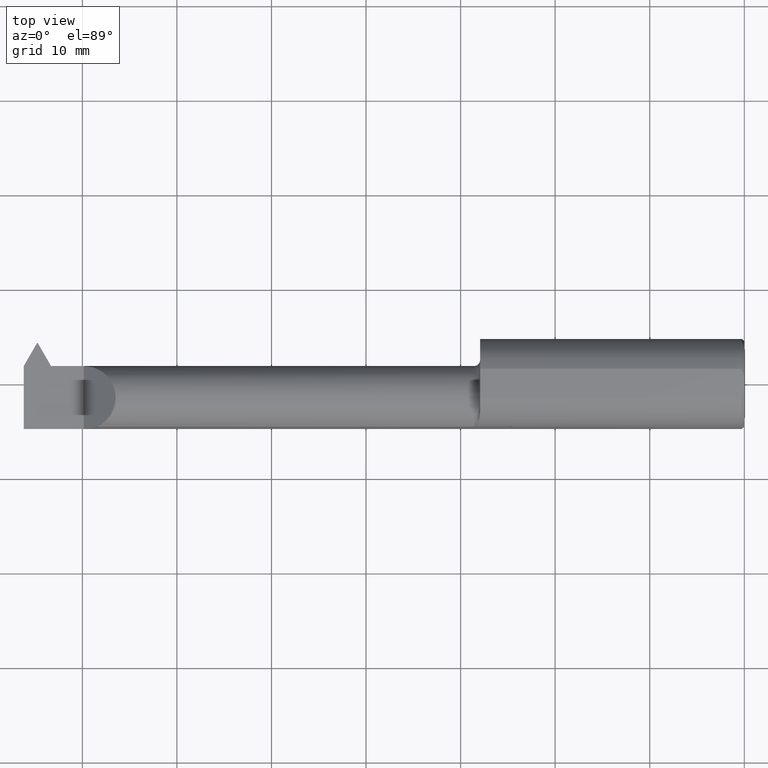
[diagram: clean part render]
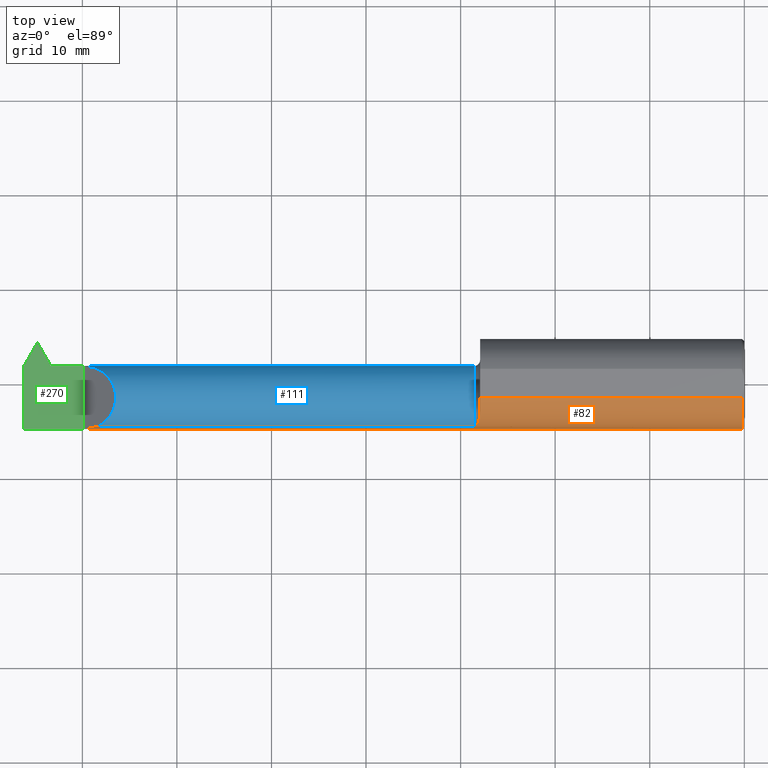
[diagram: same view with three faces highlighted in distinct colors, each labeled with its STEP entity id]
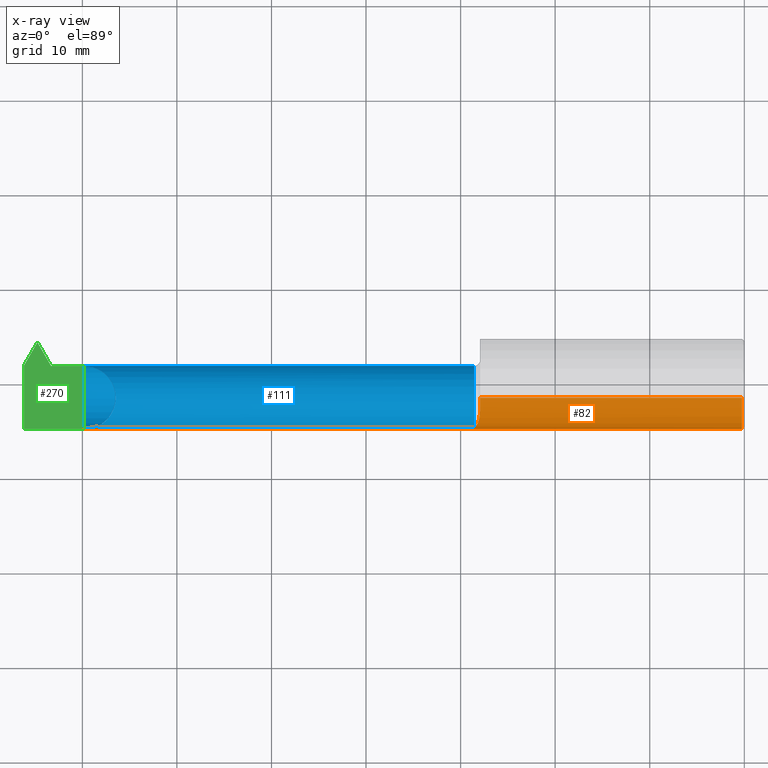
[diagram: x-ray of the same camera — body ghosted, the three highlighted faces saturated]
A machine part, top view with three faces highlighted in distinct colors.
The next image is the same camera in x-ray (body ghosted, the three faces saturated) — at least one of them is partly hidden behind the body in this view.
Their STEP definitions:

[orange] entity #82 — the highlighted cylindrical surface (partial cylindrical patch) has radius 4.7587 mm, axis along (1, 0, -0).
#9 = EDGE_CURVE ( 'NONE', #34, #840, #579, .T. ) ;
#34 = VERTEX_POINT ( 'NONE', #297 ) ;
#39 = DIRECTION ( 'NONE',  ( 1.000000000000000000, 1.224646799147352961E-16, -0.000000000000000000 ) ) ;
#51 = AXIS2_PLACEMENT_3D ( 'NONE', #289, #39, #445 ) ;
#53 = CARTESIAN_POINT ( 'NONE',  ( -0.009999999999999620304, -0.06039039658753660861, 0.1773500000000000354 ) ) ;
#55 = CARTESIAN_POINT ( 'NONE',  ( -1.117163479082055932, -0.1755340703777930333, 0.06552011612893474113 ) ) ;
#58 = CARTESIAN_POINT ( 'NONE',  ( -1.122655856876659808, -0.1781552959227975519, 0.05797775639605525638 ) ) ;
#68 = ORIENTED_EDGE ( 'NONE', *, *, #312, .T. ) ;
#75 = LINE ( 'NONE', #818, #572 ) ;
#82 = ADVANCED_FACE ( 'NONE', ( #778 ), #713, .T. ) ;
#89 = CARTESIAN_POINT ( 'NONE',  ( -1.100000000000000311, -0.1160303770345110230, 0.1470951192431506904 ) ) ;
#101 = ORIENTED_EDGE ( 'NONE', *, *, #735, .T. ) ;
#108 = ORIENTED_EDGE ( 'NONE', *, *, #539, .F. ) ;
#132 = CARTESIAN_POINT ( 'NONE',  ( -1.120156893127618458, -0.1773094052629653194, 0.06051821018283167625 ) ) ;
#136 = VECTOR ( 'NONE', #276, 39.37007874015748143 ) ;
#143 = DIRECTION ( 'NONE',  ( 0.000000000000000000, -1.000000000000000000, -5.329070518200751394E-15 ) ) ;
#146 = AXIS2_PLACEMENT_3D ( 'NONE', #148, #272, #143 ) ;
#148 = CARTESIAN_POINT ( 'NONE',  ( -1.100000000000000311, 1.714505518806293898E-16, 0.000000000000000000 ) ) ;
#180 = ORIENTED_EDGE ( 'NONE', *, *, #181, .T. ) ;
#181 = EDGE_CURVE ( 'NONE', #403, #783, #212, .T. ) ;
#186 = CARTESIAN_POINT ( 'NONE',  ( -1.118195961774019809, -0.1762973784583070913, 0.06343092843765897604 ) ) ;
#207 = AXIS2_PLACEMENT_3D ( 'NONE', #681, #532, #399 ) ;
#212 = B_SPLINE_CURVE_WITH_KNOTS ( 'NONE', 3,
 ( #268, #330, #264, #808, #678, #790, #739, #518, #385, #55, #186, #132, #753, #58, #606, #530 ),
 .UNSPECIFIED., .F., .F.,
 ( 4, 2, 2, 2, 2, 2, 2, 4 ),
 ( 0.0004765446698264718729, 0.001211022660611612905, 0.001945500651396753775, 0.002679978642181896163, 0.003047217637574466814, 0.003230837135270751923, 0.003322646884118894695, 0.003414456632967037900 ),
 .UNSPECIFIED. ) ;
#264 = CARTESIAN_POINT ( 'NONE',  ( -1.100459820461651583, -0.1306920593656015483, 0.1345866223284594432 ) ) ;
#268 = CARTESIAN_POINT ( 'NONE',  ( -1.100000000000000311, -0.1160303770345110230, 0.1470951192431506904 ) ) ;
#272 = DIRECTION ( 'NONE',  ( 1.000000000000000000, 9.422009876951564852E-18, 0.000000000000000000 ) ) ;
#276 = DIRECTION ( 'NONE',  ( 1.000000000000000000, 1.224646799147352961E-16, -0.000000000000000000 ) ) ;
#279 = VERTEX_POINT ( 'NONE', #552 ) ;
#282 = CIRCLE ( 'NONE', #146, 0.1873499999999999888 ) ;
#289 = CARTESIAN_POINT ( 'NONE',  ( -3.000000000000000444, -6.123233995736767268E-17, 0.000000000000000000 ) ) ;
#293 = DIRECTION ( 'NONE',  ( 1.000000000000000000, 1.224646799147352961E-16, -0.000000000000000000 ) ) ;
#297 = CARTESIAN_POINT ( 'NONE',  ( -2.750000000000000888, -0.1873500000000000165, 0.000000000000000000 ) ) ;
#312 = EDGE_CURVE ( 'NONE', #279, #403, #282, .T. ) ;
#330 = CARTESIAN_POINT ( 'NONE',  ( -1.099999999999979883, -0.1236042208122625358, 0.1411207813207334127 ) ) ;
#331 = EDGE_CURVE ( 'NONE', #279, #764, #689, .T. ) ;
#342 = CARTESIAN_POINT ( 'NONE',  ( -2.730507368514860200, -0.1873500000000000165, 0.01949263148514045890 ) ) ;
#379 = EDGE_LOOP ( 'NONE', ( #108, #822, #101, #499, #68, #180, #871 ) ) ;
#385 = CARTESIAN_POINT ( 'NONE',  ( -1.114343418362527594, -0.1730952584121042415, 0.07182162584505727421 ) ) ;
#399 = DIRECTION ( 'NONE',  ( -1.253099476677462608E-16, 1.000000000000000000, 0.000000000000000000 ) ) ;
#403 = VERTEX_POINT ( 'NONE', #89 ) ;
#408 = CARTESIAN_POINT ( 'NONE',  ( -3.000000000000000444, -0.06039039658753697637, 0.1773500000000000354 ) ) ;
#409 =( BOUNDED_CURVE ( )  B_SPLINE_CURVE ( 3, ( #708, #342, #757, #544 ),
 .UNSPECIFIED., .F., .T. ) 
 B_SPLINE_CURVE_WITH_KNOTS ( ( 4, 4 ),
 ( 4.712388980384689674, 5.023262387692862596 ),
 .UNSPECIFIED. ) 
 CURVE ( )  GEOMETRIC_REPRESENTATION_ITEM ( )  RATIONAL_B_SPLINE_CURVE ( ( 1.000000000000000000, 0.9919626788073504509, 0.9919626788073504509, 1.000000000000000000 ) ) 
 REPRESENTATION_ITEM ( '' )  );
#440 = CARTESIAN_POINT ( 'NONE',  ( -3.000000000000000444, -0.1873500000000000443, 2.294375778202566330E-17 ) ) ;
#445 = DIRECTION ( 'NONE',  ( 0.000000000000000000, 1.000000000000000000, 0.000000000000000000 ) ) ;
#471 = VECTOR ( 'NONE', #293, 39.37007874015748143 ) ;
#476 = VERTEX_POINT ( 'NONE', #578 ) ;
#477 = DIRECTION ( 'NONE',  ( -1.000000000000000000, -9.422009876951564852E-18, -0.000000000000000000 ) ) ;
#499 = ORIENTED_EDGE ( 'NONE', *, *, #331, .F. ) ;
#518 = CARTESIAN_POINT ( 'NONE',  ( -1.112861924135736924, -0.1712588160411470106, 0.07610809679501476244 ) ) ;
#530 = CARTESIAN_POINT ( 'NONE',  ( -1.125000000000000222, -0.1783697086546693900, 0.05730854678360254584 ) ) ;
#532 = DIRECTION ( 'NONE',  ( -1.000000000000000000, -1.224646799147313518E-16, 0.000000000000000000 ) ) ;
#539 = EDGE_CURVE ( 'NONE', #34, #476, #409, .T. ) ;
#544 = CARTESIAN_POINT ( 'NONE',  ( -2.692691453216398578, -0.1783697086546696398, 0.05730854678360174786 ) ) ;
#552 = CARTESIAN_POINT ( 'NONE',  ( -1.100000000000000311, -0.06039039658753674045, 0.1773500000000000354 ) ) ;
#553 = CIRCLE ( 'NONE', #207, 0.1873499999999999888 ) ;
#572 = VECTOR ( 'NONE', #477, 39.37007874015748143 ) ;
#574 = EDGE_CURVE ( 'NONE', #783, #476, #75, .T. ) ;
#578 = CARTESIAN_POINT ( 'NONE',  ( -2.692691453216398578, -0.1783697086546696398, 0.05730854678360174786 ) ) ;
#579 = LINE ( 'NONE', #440, #471 ) ;
#606 = CARTESIAN_POINT ( 'NONE',  ( -1.123764212023045994, -0.1783697086546794375, 0.05730854678357134857 ) ) ;
#666 = CARTESIAN_POINT ( 'NONE',  ( -1.125000000000000222, -0.1783697086546693900, 0.05730854678360254584 ) ) ;
#678 = CARTESIAN_POINT ( 'NONE',  ( -1.103482061302841988, -0.1498697720273085010, 0.1128244190106193617 ) ) ;
#681 = CARTESIAN_POINT ( 'NONE',  ( -0.009999999999999620304, 3.049370529876909883E-16, 0.000000000000000000 ) ) ;
#689 = LINE ( 'NONE', #408, #136 ) ;
#708 = CARTESIAN_POINT ( 'NONE',  ( -2.750000000000000888, -0.1873500000000000165, 0.000000000000000000 ) ) ;
#713 = CYLINDRICAL_SURFACE ( 'NONE', #51, 0.1873499999999999888 ) ;
#735 = EDGE_CURVE ( 'NONE', #840, #764, #553, .T. ) ;
#739 = CARTESIAN_POINT ( 'NONE',  ( -1.108844572613943313, -0.1652240583778507299, 0.08882027308811819843 ) ) ;
#753 = CARTESIAN_POINT ( 'NONE',  ( -1.120882408083194948, -0.1776276410483745849, 0.05957475000073168131 ) ) ;
#757 = CARTESIAN_POINT ( 'NONE',  ( -2.711249739839923567, -0.1843323154515828510, 0.03875026016007689783 ) ) ;
#764 = VERTEX_POINT ( 'NONE', #53 ) ;
#778 = FACE_OUTER_BOUND ( 'NONE', #379, .T. ) ;
#783 = VERTEX_POINT ( 'NONE', #666 ) ;
#790 = CARTESIAN_POINT ( 'NONE',  ( -1.106810654710998820, -0.1605151270935969432, 0.09708342838367223226 ) ) ;
#807 = CARTESIAN_POINT ( 'NONE',  ( -0.009999999999999596018, -0.1873499999999996835, 2.294375778202566330E-17 ) ) ;
#808 = CARTESIAN_POINT ( 'NONE',  ( -1.102207105173745427, -0.1438831799117078480, 0.1203810775392062660 ) ) ;
#818 = CARTESIAN_POINT ( 'NONE',  ( -2.003037187078897663, -0.1783697086546693344, 0.05730854678360253196 ) ) ;
#822 = ORIENTED_EDGE ( 'NONE', *, *, #9, .T. ) ;
#840 = VERTEX_POINT ( 'NONE', #807 ) ;
#871 = ORIENTED_EDGE ( 'NONE', *, *, #574, .T. ) ;

[blue] entity #111 — the highlighted cylindrical surface (edge-blend (fillet) strip) has radius 3.3782 mm, axis along (-1, -0, -0).
#7 = VERTEX_POINT ( 'NONE', #498 ) ;
#10 =( BOUNDED_CURVE ( )  B_SPLINE_CURVE ( 3, ( #798, #262, #200, #266 ),
 .UNSPECIFIED., .F., .T. ) 
 B_SPLINE_CURVE_WITH_KNOTS ( ( 4, 4 ),
 ( 1.570796326794896558, 4.266908708460885435 ),
 .UNSPECIFIED. ) 
 CURVE ( )  GEOMETRIC_REPRESENTATION_ITEM ( )  RATIONAL_B_SPLINE_CURVE ( ( 1.000000000000000000, 0.4806019281062861581, 0.4806019281062861581, 1.000000000000000000 ) ) 
 REPRESENTATION_ITEM ( '' )  );
#20 = ORIENTED_EDGE ( 'NONE', *, *, #512, .F. ) ;
#24 = CARTESIAN_POINT ( 'NONE',  ( -1.125000000000000222, -0.05835000000000015868, 0.000000000000000000 ) ) ;
#29 = AXIS2_PLACEMENT_3D ( 'NONE', #707, #815, #144 ) ;
#41 = CARTESIAN_POINT ( 'NONE',  ( -2.881074374157795770, 0.07464999999999984148, 0.000000000000000000 ) ) ;
#44 = AXIS2_PLACEMENT_3D ( 'NONE', #161, #179, #727 ) ;
#65 = EDGE_LOOP ( 'NONE', ( #619, #555, #367, #546, #679, #20, #580, #652, #747, #611 ) ) ;
#70 =( BOUNDED_CURVE ( )  B_SPLINE_CURVE ( 3, ( #41, #503, #636, #853 ),
 .UNSPECIFIED., .F., .T. ) 
 B_SPLINE_CURVE_WITH_KNOTS ( ( 4, 4 ),
 ( 1.570796326794896780, 1.972222054753673959 ),
 .UNSPECIFIED. ) 
 CURVE ( )  GEOMETRIC_REPRESENTATION_ITEM ( )  RATIONAL_B_SPLINE_CURVE ( ( 1.000000000000000000, 0.9866164697472142864, 0.9866164697472142864, 1.000000000000000000 ) ) 
 REPRESENTATION_ITEM ( '' )  );
#75 = LINE ( 'NONE', #818, #572 ) ;
#100 = LINE ( 'NONE', #775, #350 ) ;
#102 = EDGE_CURVE ( 'NONE', #787, #625, #100, .T. ) ;
#110 = CYLINDRICAL_SURFACE ( 'NONE', #44, 0.1330000000000000904 ) ;
#111 = ADVANCED_FACE ( 'NONE', ( #851 ), #110, .T. ) ;
#113 = CARTESIAN_POINT ( 'NONE',  ( -2.881074374157795770, 0.06407714550917452401, -0.05196724008907319808 ) ) ;
#119 = CIRCLE ( 'NONE', #29, 0.1330000000000000349 ) ;
#122 = VECTOR ( 'NONE', #239, 39.37007874015748143 ) ;
#144 = DIRECTION ( 'NONE',  ( 0.000000000000000000, -1.000000000000000000, 0.000000000000000000 ) ) ;
#161 = CARTESIAN_POINT ( 'NONE',  ( -3.000000000000000444, -0.05835000000000017950, 0.000000000000000000 ) ) ;
#179 = DIRECTION ( 'NONE',  ( -1.000000000000000000, -9.422009876951564852E-18, -0.000000000000000000 ) ) ;
#200 = CARTESIAN_POINT ( 'NONE',  ( -2.530319072763994370, -0.1008380660117492583, 0.2196809272360040199 ) ) ;
#214 = CARTESIAN_POINT ( 'NONE',  ( -3.000000000000000444, -0.05835000000000015175, -0.1330000000000000349 ) ) ;
#239 = DIRECTION ( 'NONE',  ( 1.000000000000000000, 9.422009876951564852E-18, 0.000000000000000000 ) ) ;
#251 = DIRECTION ( 'NONE',  ( 0.000000000000000000, -1.000000000000000000, 0.000000000000000000 ) ) ;
#262 = CARTESIAN_POINT ( 'NONE',  ( -2.570066830337789376, 0.07464999999999992475, 0.1799331696622088750 ) ) ;
#266 = CARTESIAN_POINT ( 'NONE',  ( -2.692691453216398578, -0.1783697086546696398, 0.05730854678360174786 ) ) ;
#291 = DIRECTION ( 'NONE',  ( -1.000000000000000000, -9.422009876951564852E-18, -0.000000000000000000 ) ) ;
#302 = VERTEX_POINT ( 'NONE', #214 ) ;
#350 = VECTOR ( 'NONE', #656, 39.37007874015748143 ) ;
#355 = CARTESIAN_POINT ( 'NONE',  ( -2.881074374157795770, -0.05835000000000017950, 0.000000000000000000 ) ) ;
#367 = ORIENTED_EDGE ( 'NONE', *, *, #821, .T. ) ;
#368 = AXIS2_PLACEMENT_3D ( 'NONE', #24, #291, #251 ) ;
#388 = CARTESIAN_POINT ( 'NONE',  ( -2.881074374157795770, 0.07464999999999984148, 0.000000000000000000 ) ) ;
#424 = CARTESIAN_POINT ( 'NONE',  ( -2.750000000000000888, 0.07464999999999991087, 0.000000000000000000 ) ) ;
#432 = DIRECTION ( 'NONE',  ( -1.000000000000000000, -9.422009876951564852E-18, -0.000000000000000000 ) ) ;
#433 = CARTESIAN_POINT ( 'NONE',  ( -2.003037187078897663, -0.1783697086546693344, -0.05730854678360253196 ) ) ;
#476 = VERTEX_POINT ( 'NONE', #578 ) ;
#477 = DIRECTION ( 'NONE',  ( -1.000000000000000000, -9.422009876951564852E-18, -0.000000000000000000 ) ) ;
#490 = VERTEX_POINT ( 'NONE', #723 ) ;
#497 = LINE ( 'NONE', #433, #122 ) ;
#498 = CARTESIAN_POINT ( 'NONE',  ( -1.125000000000000222, -0.1783697086546693900, -0.05730854678360254584 ) ) ;
#503 = CARTESIAN_POINT ( 'NONE',  ( -2.877429102214748902, 0.07464999999999995250, -0.01791708402103223824 ) ) ;
#512 = EDGE_CURVE ( 'NONE', #490, #7, #497, .T. ) ;
#546 = ORIENTED_EDGE ( 'NONE', *, *, #574, .F. ) ;
#555 = ORIENTED_EDGE ( 'NONE', *, *, #102, .T. ) ;
#568 = EDGE_CURVE ( 'NONE', #490, #302, #119, .T. ) ;
#572 = VECTOR ( 'NONE', #477, 39.37007874015748143 ) ;
#573 = LINE ( 'NONE', #844, #812 ) ;
#574 = EDGE_CURVE ( 'NONE', #783, #476, #75, .T. ) ;
#577 = VERTEX_POINT ( 'NONE', #760 ) ;
#578 = CARTESIAN_POINT ( 'NONE',  ( -2.692691453216398578, -0.1783697086546696398, 0.05730854678360174786 ) ) ;
#580 = ORIENTED_EDGE ( 'NONE', *, *, #568, .T. ) ;
#582 = AXIS2_PLACEMENT_3D ( 'NONE', #355, #432, #697 ) ;
#590 = CARTESIAN_POINT ( 'NONE',  ( -3.000000000000002220, 0.06407714550917019414, -0.05196724008908354397 ) ) ;
#605 = CARTESIAN_POINT ( 'NONE',  ( -2.881074374157795770, -0.05835000000000015175, -0.1330000000000000349 ) ) ;
#611 = ORIENTED_EDGE ( 'NONE', *, *, #804, .F. ) ;
#619 = ORIENTED_EDGE ( 'NONE', *, *, #710, .F. ) ;
#625 = VERTEX_POINT ( 'NONE', #424 ) ;
#636 = CARTESIAN_POINT ( 'NONE',  ( -2.873857010182696570, 0.07107790796794666299, -0.03547447728800868366 ) ) ;
#646 = CIRCLE ( 'NONE', #368, 0.1330000000000001736 ) ;
#652 = ORIENTED_EDGE ( 'NONE', *, *, #683, .F. ) ;
#656 = DIRECTION ( 'NONE',  ( 1.000000000000000000, 9.422009876951564852E-18, 0.000000000000000000 ) ) ;
#666 = CARTESIAN_POINT ( 'NONE',  ( -1.125000000000000222, -0.1783697086546693900, 0.05730854678360254584 ) ) ;
#676 = DIRECTION ( 'NONE',  ( -1.000000000000000000, -9.422009876951564852E-18, -0.000000000000000000 ) ) ;
#679 = ORIENTED_EDGE ( 'NONE', *, *, #721, .T. ) ;
#683 = EDGE_CURVE ( 'NONE', #792, #302, #573, .T. ) ;
#690 = VERTEX_POINT ( 'NONE', #113 ) ;
#697 = DIRECTION ( 'NONE',  ( 0.000000000000000000, -1.000000000000000000, 0.000000000000000000 ) ) ;
#701 = CIRCLE ( 'NONE', #582, 0.1330000000000000349 ) ;
#707 = CARTESIAN_POINT ( 'NONE',  ( -3.000000000000000444, -0.05835000000000017950, 0.000000000000000000 ) ) ;
#710 = EDGE_CURVE ( 'NONE', #787, #577, #70, .T. ) ;
#721 = EDGE_CURVE ( 'NONE', #783, #7, #646, .T. ) ;
#723 = CARTESIAN_POINT ( 'NONE',  ( -3.000000000000000444, -0.1783697086546697508, -0.05730854678360152582 ) ) ;
#727 = DIRECTION ( 'NONE',  ( 0.000000000000000000, -1.000000000000000000, 0.000000000000000000 ) ) ;
#747 = ORIENTED_EDGE ( 'NONE', *, *, #867, .F. ) ;
#760 = CARTESIAN_POINT ( 'NONE',  ( -2.870501519666967649, 0.06407714550917134599, -0.05196724008908376602 ) ) ;
#775 = CARTESIAN_POINT ( 'NONE',  ( -3.000000000000000444, 0.07464999999999991087, 0.000000000000000000 ) ) ;
#783 = VERTEX_POINT ( 'NONE', #666 ) ;
#787 = VERTEX_POINT ( 'NONE', #388 ) ;
#792 = VERTEX_POINT ( 'NONE', #605 ) ;
#798 = CARTESIAN_POINT ( 'NONE',  ( -2.750000000000000888, 0.07464999999999991087, 0.000000000000000000 ) ) ;
#803 = LINE ( 'NONE', #590, #809 ) ;
#804 = EDGE_CURVE ( 'NONE', #577, #690, #803, .T. ) ;
#809 = VECTOR ( 'NONE', #676, 39.37007874015748143 ) ;
#812 = VECTOR ( 'NONE', #849, 39.37007874015748143 ) ;
#815 = DIRECTION ( 'NONE',  ( 1.000000000000000000, 1.553500558300393113E-17, -0.000000000000000000 ) ) ;
#818 = CARTESIAN_POINT ( 'NONE',  ( -2.003037187078897663, -0.1783697086546693344, 0.05730854678360253196 ) ) ;
#821 = EDGE_CURVE ( 'NONE', #625, #476, #10, .T. ) ;
#844 = CARTESIAN_POINT ( 'NONE',  ( -2.881074374157795770, -0.05835000000000015175, -0.1330000000000000349 ) ) ;
#849 = DIRECTION ( 'NONE',  ( -1.000000000000000000, -1.553500558300393421E-17, -0.000000000000000000 ) ) ;
#851 = FACE_OUTER_BOUND ( 'NONE', #65, .T. ) ;
#853 = CARTESIAN_POINT ( 'NONE',  ( -2.870501519666967649, 0.06407714550917134599, -0.05196724008908376602 ) ) ;
#867 = EDGE_CURVE ( 'NONE', #690, #792, #701, .T. ) ;

[green] entity #270 — the highlighted planar face has unit normal (0, 0, -1).
#34 = VERTEX_POINT ( 'NONE', #297 ) ;
#46 = EDGE_CURVE ( 'NONE', #776, #486, #842, .T. ) ;
#83 = ORIENTED_EDGE ( 'NONE', *, *, #102, .F. ) ;
#95 = DIRECTION ( 'NONE',  ( 1.224646799147352961E-16, -1.000000000000000000, 0.000000000000000000 ) ) ;
#100 = LINE ( 'NONE', #775, #350 ) ;
#102 = EDGE_CURVE ( 'NONE', #787, #625, #100, .T. ) ;
#115 = EDGE_CURVE ( 'NONE', #34, #625, #366, .T. ) ;
#135 = DIRECTION ( 'NONE',  ( 1.000000000000000000, 1.878145495644149877E-14, 0.000000000000000000 ) ) ;
#151 = CARTESIAN_POINT ( 'NONE',  ( -3.000000000000000444, -0.2500000000000000000, 0.000000000000000000 ) ) ;
#162 = ORIENTED_EDGE ( 'NONE', *, *, #290, .F. ) ;
#177 = CARTESIAN_POINT ( 'NONE',  ( -3.000000000000000444, -6.123233995736767268E-17, 0.000000000000000000 ) ) ;
#211 = VECTOR ( 'NONE', #718, 39.37007874015748143 ) ;
#217 = LINE ( 'NONE', #682, #688 ) ;
#219 = LINE ( 'NONE', #617, #414 ) ;
#247 = DIRECTION ( 'NONE',  ( -0.000000000000000000, 1.000000000000000000, -0.000000000000000000 ) ) ;
#265 = ORIENTED_EDGE ( 'NONE', *, *, #612, .F. ) ;
#267 = EDGE_CURVE ( 'NONE', #486, #787, #527, .T. ) ;
#269 = ORIENTED_EDGE ( 'NONE', *, *, #473, .T. ) ;
#270 = ADVANCED_FACE ( 'NONE', ( #543 ), #347, .F. ) ;
#290 = EDGE_CURVE ( 'NONE', #714, #736, #217, .T. ) ;
#292 = CARTESIAN_POINT ( 'NONE',  ( -2.886074374157796107, 0.07464999999999998026, 0.000000000000000000 ) ) ;
#295 = VECTOR ( 'NONE', #418, 39.37007874015748143 ) ;
#297 = CARTESIAN_POINT ( 'NONE',  ( -2.750000000000000888, -0.1873500000000000165, 0.000000000000000000 ) ) ;
#340 = ORIENTED_EDGE ( 'NONE', *, *, #115, .T. ) ;
#347 = PLANE ( 'NONE',  #570 ) ;
#350 = VECTOR ( 'NONE', #656, 39.37007874015748143 ) ;
#366 = LINE ( 'NONE', #644, #467 ) ;
#388 = CARTESIAN_POINT ( 'NONE',  ( -2.881074374157795770, 0.07464999999999984148, 0.000000000000000000 ) ) ;
#412 = LINE ( 'NONE', #687, #295 ) ;
#413 = DIRECTION ( 'NONE',  ( -1.000000000000000000, 0.000000000000000000, -0.000000000000000000 ) ) ;
#414 = VECTOR ( 'NONE', #691, 39.37007874015748143 ) ;
#418 = DIRECTION ( 'NONE',  ( 1.000000000000000000, 1.224646799147352961E-16, -0.000000000000000000 ) ) ;
#424 = CARTESIAN_POINT ( 'NONE',  ( -2.750000000000000888, 0.07464999999999991087, 0.000000000000000000 ) ) ;
#426 = LINE ( 'NONE', #177, #719 ) ;
#430 = CARTESIAN_POINT ( 'NONE',  ( -2.132231382422093979, -1.231044362615963061, 0.000000000000000000 ) ) ;
#462 = CARTESIAN_POINT ( 'NONE',  ( -2.941500000000000448, 0.1706500000000001072, 0.000000000000000000 ) ) ;
#467 = VECTOR ( 'NONE', #247, 39.37007874015748143 ) ;
#473 = EDGE_CURVE ( 'NONE', #714, #700, #426, .T. ) ;
#486 = VERTEX_POINT ( 'NONE', #292 ) ;
#495 = CARTESIAN_POINT ( 'NONE',  ( -3.000000000000000444, -0.1873500000000000443, 0.000000000000000000 ) ) ;
#527 = LINE ( 'NONE', #745, #761 ) ;
#543 = FACE_OUTER_BOUND ( 'NONE', #593, .T. ) ;
#570 = AXIS2_PLACEMENT_3D ( 'NONE', #151, #813, #413 ) ;
#585 = EDGE_CURVE ( 'NONE', #700, #34, #412, .T. ) ;
#593 = EDGE_LOOP ( 'NONE', ( #265, #162, #269, #693, #340, #83, #648, #633 ) ) ;
#612 = EDGE_CURVE ( 'NONE', #736, #776, #219, .T. ) ;
#617 = CARTESIAN_POINT ( 'NONE',  ( -3.000000000000000444, 0.1706499999999999406, 0.000000000000000000 ) ) ;
#625 = VERTEX_POINT ( 'NONE', #424 ) ;
#633 = ORIENTED_EDGE ( 'NONE', *, *, #46, .F. ) ;
#644 = CARTESIAN_POINT ( 'NONE',  ( -2.750000000000000888, -0.2500000000000000000, 0.000000000000000000 ) ) ;
#648 = ORIENTED_EDGE ( 'NONE', *, *, #267, .F. ) ;
#656 = DIRECTION ( 'NONE',  ( 1.000000000000000000, 9.422009876951564852E-18, 0.000000000000000000 ) ) ;
#682 = CARTESIAN_POINT ( 'NONE',  ( -2.282268617577938752, 1.317668400721618838, 0.000000000000000000 ) ) ;
#687 = CARTESIAN_POINT ( 'NONE',  ( -3.000000000000000444, -0.1873500000000000443, 0.000000000000000000 ) ) ;
#688 = VECTOR ( 'NONE', #820, 39.37007874015748854 ) ;
#691 = DIRECTION ( 'NONE',  ( 1.000000000000000000, 9.422009876951564852E-18, 0.000000000000000000 ) ) ;
#693 = ORIENTED_EDGE ( 'NONE', *, *, #585, .T. ) ;
#700 = VERTEX_POINT ( 'NONE', #495 ) ;
#714 = VERTEX_POINT ( 'NONE', #788 ) ;
#718 = DIRECTION ( 'NONE',  ( 0.4999999999999998335, -0.8660254037844388186, 0.000000000000000000 ) ) ;
#719 = VECTOR ( 'NONE', #95, 39.37007874015748143 ) ;
#736 = VERTEX_POINT ( 'NONE', #872 ) ;
#745 = CARTESIAN_POINT ( 'NONE',  ( -1.402035612499372659E-15, 0.07465000000005403424, 0.000000000000000000 ) ) ;
#761 = VECTOR ( 'NONE', #135, 39.37007874015748143 ) ;
#775 = CARTESIAN_POINT ( 'NONE',  ( -3.000000000000000444, 0.07464999999999991087, 0.000000000000000000 ) ) ;
#776 = VERTEX_POINT ( 'NONE', #462 ) ;
#787 = VERTEX_POINT ( 'NONE', #388 ) ;
#788 = CARTESIAN_POINT ( 'NONE',  ( -3.000000000000000444, 0.07452118017992298560, 0.000000000000000000 ) ) ;
#813 = DIRECTION ( 'NONE',  ( 0.000000000000000000, 0.000000000000000000, -1.000000000000000000 ) ) ;
#820 = DIRECTION ( 'NONE',  ( 0.4999999999999887867, 0.8660254037844449249, 0.000000000000000000 ) ) ;
#842 = LINE ( 'NONE', #430, #211 ) ;
#872 = CARTESIAN_POINT ( 'NONE',  ( -2.944499999999999229, 0.1706500000000000239, 0.000000000000000000 ) ) ;